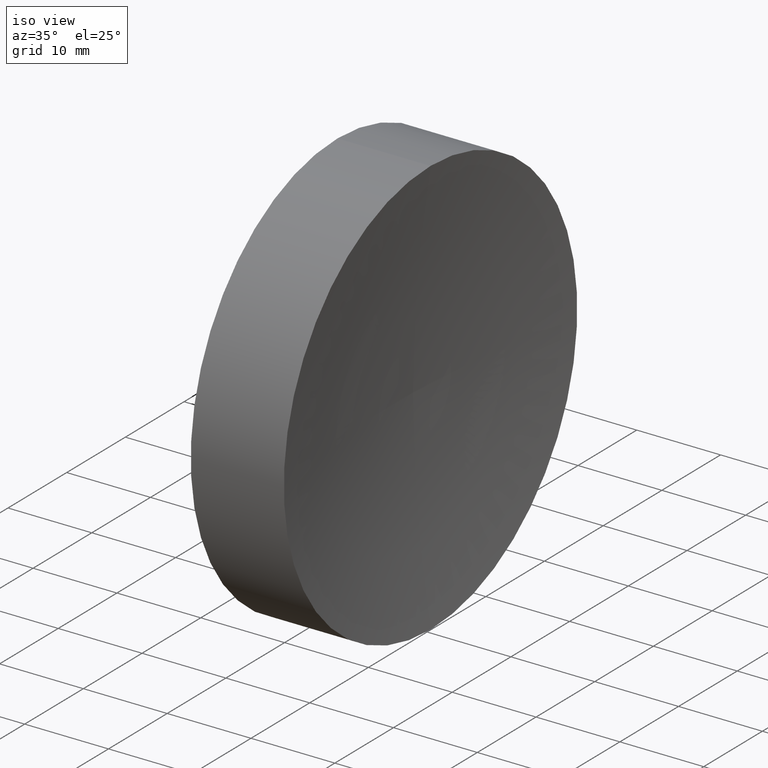
[diagram: clean part render]
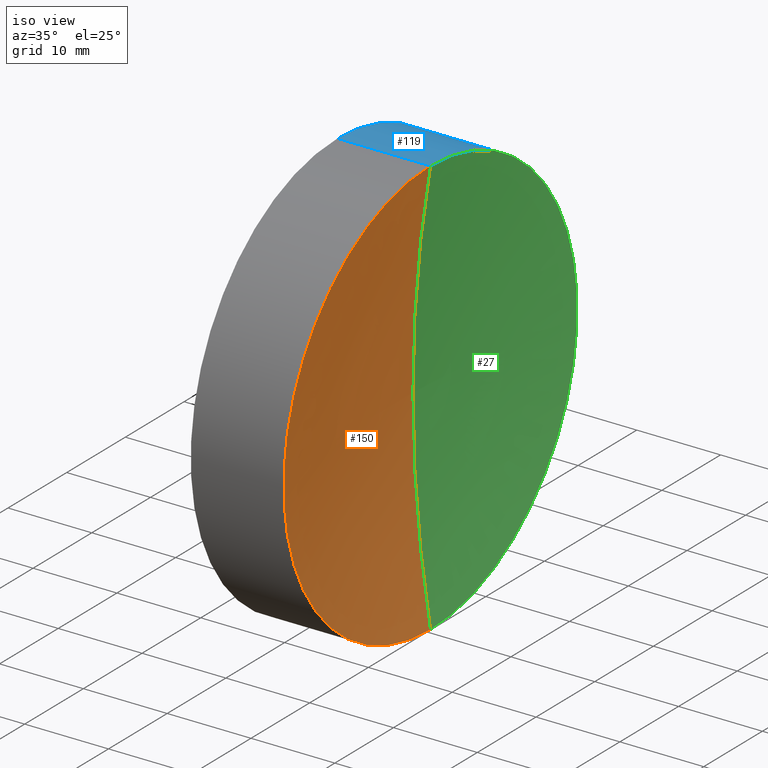
[diagram: same view with three faces highlighted in distinct colors, each labeled with its STEP entity id]
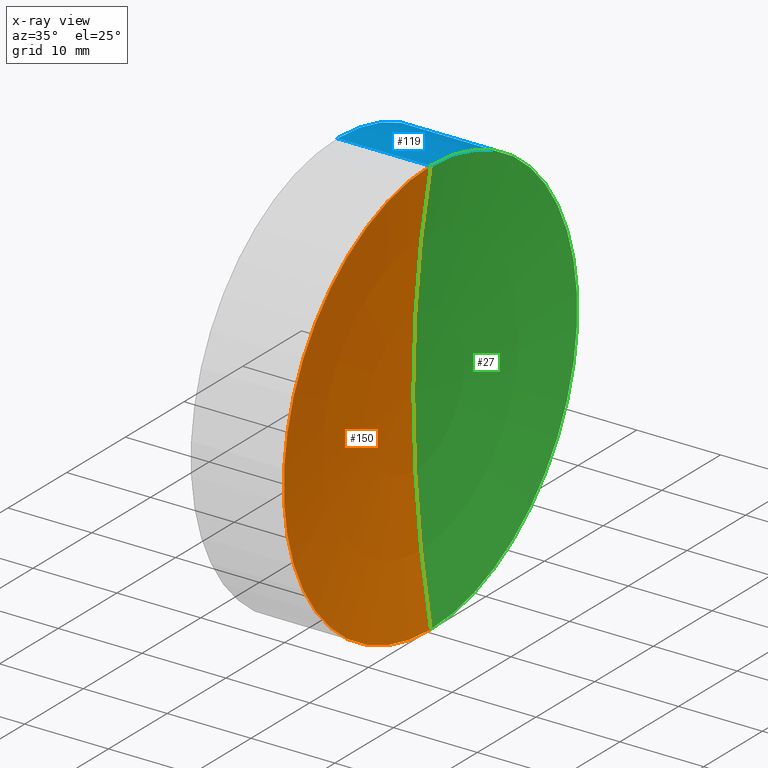
[diagram: x-ray of the same camera — body ghosted, the three highlighted faces saturated]
A machine part, iso view with three faces highlighted in distinct colors.
The next image is the same camera in x-ray (body ghosted, the three faces saturated) — at least one of them is partly hidden behind the body in this view.
Their STEP definitions:

[orange] entity #150 — the highlighted toroidal blend (fillet) surface has major radius 0 mm and minor (blend) radius 150 mm.
#5 = VERTEX_POINT ( 'NONE', #29 ) ;
#14 = FACE_OUTER_BOUND ( 'NONE', #117, .T. ) ;
#29 = CARTESIAN_POINT ( 'NONE',  ( 241.2833154481886300, 138.7560422467448700, -24.99999999999999300 ) ) ;
#31 = AXIS2_PLACEMENT_3D ( 'NONE', #47, #151, #149 ) ;
#35 = CARTESIAN_POINT ( 'NONE',  ( 389.1853088740783700, 138.7560422467448700, -6.812960362534425900E-006 ) ) ;
#40 = EDGE_CURVE ( 'NONE', #5, #146, #134, .T. ) ;
#43 = CARTESIAN_POINT ( 'NONE',  ( 389.1853088740783700, 138.7560422467448700, 6.812960362534425900E-006 ) ) ;
#45 = DIRECTION ( 'NONE',  ( -1.000000000000000000, -0.0000000000000000000, -0.0000000000000000000 ) ) ;
#47 = CARTESIAN_POINT ( 'NONE',  ( 389.1853088740783700, 138.7560422467448700, 0.0000000000000000000 ) ) ;
#65 = EDGE_CURVE ( 'NONE', #5, #89, #135, .T. ) ;
#77 = EDGE_CURVE ( 'NONE', #89, #146, #82, .T. ) ;
#79 = CARTESIAN_POINT ( 'NONE',  ( 241.2833154481886300, 138.7560422467448700, 24.99999999999999300 ) ) ;
#81 = DIRECTION ( 'NONE',  ( 0.0000000000000000000, 0.0000000000000000000, 1.000000000000000000 ) ) ;
#82 = CIRCLE ( 'NONE', #144, 150.0000000000000300 ) ;
#87 = CARTESIAN_POINT ( 'NONE',  ( 239.1853088740785200, 138.7560422467448700, 0.0000000000000000000 ) ) ;
#89 = VERTEX_POINT ( 'NONE', #79 ) ;
#94 = DIRECTION ( 'NONE',  ( -0.0000000000000000000, 1.000000000000000000, 1.224646799147353200E-016 ) ) ;
#97 = DIRECTION ( 'NONE',  ( 0.0000000000000000000, 0.0000000000000000000, -1.000000000000000000 ) ) ;
#108 = ORIENTED_EDGE ( 'NONE', *, *, #77, .F. ) ;
#112 = DIRECTION ( 'NONE',  ( 0.0000000000000000000, -1.850371707708593800E-016, 1.000000000000000000 ) ) ;
#114 = AXIS2_PLACEMENT_3D ( 'NONE', #156, #45, #81 ) ;
#115 = ORIENTED_EDGE ( 'NONE', *, *, #40, .T. ) ;
#117 = EDGE_LOOP ( 'NONE', ( #127, #115, #108 ) ) ;
#125 = DIRECTION ( 'NONE',  ( 0.0000000000000000000, -1.000000000000000000, 0.0000000000000000000 ) ) ;
#126 = TOROIDAL_SURFACE ( 'NONE', #31, -6.812960362534425900E-006, 150.0000000000000300 ) ;
#127 = ORIENTED_EDGE ( 'NONE', *, *, #65, .F. ) ;
#130 = AXIS2_PLACEMENT_3D ( 'NONE', #43, #94, #112 ) ;
#134 = CIRCLE ( 'NONE', #130, 150.0000000000000300 ) ;
#135 = CIRCLE ( 'NONE', #114, 24.99999999999999300 ) ;
#144 = AXIS2_PLACEMENT_3D ( 'NONE', #35, #125, #97 ) ;
#146 = VERTEX_POINT ( 'NONE', #87 ) ;
#149 = DIRECTION ( 'NONE',  ( 0.0000000000000000000, 0.0000000000000000000, 1.000000000000000000 ) ) ;
#150 = ADVANCED_FACE ( 'NONE', ( #14 ), #126, .F. ) ;
#151 = DIRECTION ( 'NONE',  ( -1.000000000000000000, -0.0000000000000000000, -0.0000000000000000000 ) ) ;
#156 = CARTESIAN_POINT ( 'NONE',  ( 241.2833154481886300, 138.7560422467448700, 0.0000000000000000000 ) ) ;

[blue] entity #119 — the highlighted cylindrical surface (partial cylindrical patch) has radius 25 mm, axis along (-1, -0, -0).
#5 = VERTEX_POINT ( 'NONE', #29 ) ;
#7 = DIRECTION ( 'NONE',  ( 0.0000000000000000000, 0.0000000000000000000, 1.000000000000000000 ) ) ;
#10 = CARTESIAN_POINT ( 'NONE',  ( 230.1853110698390300, 138.7560422467448700, 0.0000000000000000000 ) ) ;
#11 = CIRCLE ( 'NONE', #107, 24.99999999999999300 ) ;
#15 = ORIENTED_EDGE ( 'NONE', *, *, #70, .T. ) ;
#17 = CARTESIAN_POINT ( 'NONE',  ( 217.9702860043302100, 138.7560422467448700, 0.0000000000000000000 ) ) ;
#18 = DIRECTION ( 'NONE',  ( -1.000000000000000000, -0.0000000000000000000, -0.0000000000000000000 ) ) ;
#19 = DIRECTION ( 'NONE',  ( -1.000000000000000000, -0.0000000000000000000, -0.0000000000000000000 ) ) ;
#20 = DIRECTION ( 'NONE',  ( -1.000000000000000000, -0.0000000000000000000, -0.0000000000000000000 ) ) ;
#23 = DIRECTION ( 'NONE',  ( -1.000000000000000000, -0.0000000000000000000, -0.0000000000000000000 ) ) ;
#29 = CARTESIAN_POINT ( 'NONE',  ( 241.2833154481886300, 138.7560422467448700, -24.99999999999999300 ) ) ;
#33 = LINE ( 'NONE', #80, #158 ) ;
#41 = VECTOR ( 'NONE', #18, 1000.000000000000000 ) ;
#51 = CIRCLE ( 'NONE', #101, 24.99999999999999300 ) ;
#52 = AXIS2_PLACEMENT_3D ( 'NONE', #17, #160, #141 ) ;
#53 = VERTEX_POINT ( 'NONE', #110 ) ;
#55 = CARTESIAN_POINT ( 'NONE',  ( 241.2833154481886300, 138.7560422467448700, 0.0000000000000000000 ) ) ;
#70 = EDGE_CURVE ( 'NONE', #89, #5, #51, .T. ) ;
#71 = FACE_OUTER_BOUND ( 'NONE', #159, .T. ) ;
#76 = ORIENTED_EDGE ( 'NONE', *, *, #154, .F. ) ;
#79 = CARTESIAN_POINT ( 'NONE',  ( 241.2833154481886300, 138.7560422467448700, 24.99999999999999300 ) ) ;
#80 = CARTESIAN_POINT ( 'NONE',  ( 217.9702860043302100, 138.7560422467448700, -24.99999999999999300 ) ) ;
#89 = VERTEX_POINT ( 'NONE', #79 ) ;
#90 = EDGE_CURVE ( 'NONE', #5, #53, #33, .T. ) ;
#92 = CYLINDRICAL_SURFACE ( 'NONE', #52, 24.99999999999999300 ) ;
#93 = EDGE_CURVE ( 'NONE', #89, #137, #103, .T. ) ;
#96 = CARTESIAN_POINT ( 'NONE',  ( 217.9702860043302100, 138.7560422467448700, 24.99999999999999300 ) ) ;
#101 = AXIS2_PLACEMENT_3D ( 'NONE', #55, #19, #157 ) ;
#103 = LINE ( 'NONE', #96, #41 ) ;
#107 = AXIS2_PLACEMENT_3D ( 'NONE', #10, #23, #7 ) ;
#110 = CARTESIAN_POINT ( 'NONE',  ( 230.1853110698390300, 138.7560422467448700, -24.99999999999999300 ) ) ;
#119 = ADVANCED_FACE ( 'NONE', ( #71 ), #92, .T. ) ;
#137 = VERTEX_POINT ( 'NONE', #143 ) ;
#141 = DIRECTION ( 'NONE',  ( 0.0000000000000000000, 0.0000000000000000000, 1.000000000000000000 ) ) ;
#143 = CARTESIAN_POINT ( 'NONE',  ( 230.1853110698390300, 138.7560422467448700, 24.99999999999999300 ) ) ;
#152 = ORIENTED_EDGE ( 'NONE', *, *, #93, .F. ) ;
#154 = EDGE_CURVE ( 'NONE', #137, #53, #11, .T. ) ;
#157 = DIRECTION ( 'NONE',  ( 0.0000000000000000000, 0.0000000000000000000, 1.000000000000000000 ) ) ;
#158 = VECTOR ( 'NONE', #20, 1000.000000000000000 ) ;
#159 = EDGE_LOOP ( 'NONE', ( #15, #166, #76, #152 ) ) ;
#160 = DIRECTION ( 'NONE',  ( -1.000000000000000000, -0.0000000000000000000, -0.0000000000000000000 ) ) ;
#166 = ORIENTED_EDGE ( 'NONE', *, *, #90, .T. ) ;

[green] entity #27 — the highlighted toroidal blend (fillet) surface has major radius 0 mm and minor (blend) radius 150 mm.
#5 = VERTEX_POINT ( 'NONE', #29 ) ;
#19 = DIRECTION ( 'NONE',  ( -1.000000000000000000, -0.0000000000000000000, -0.0000000000000000000 ) ) ;
#27 = ADVANCED_FACE ( 'NONE', ( #99 ), #147, .F. ) ;
#29 = CARTESIAN_POINT ( 'NONE',  ( 241.2833154481886300, 138.7560422467448700, -24.99999999999999300 ) ) ;
#35 = CARTESIAN_POINT ( 'NONE',  ( 389.1853088740783700, 138.7560422467448700, -6.812960362534425900E-006 ) ) ;
#40 = EDGE_CURVE ( 'NONE', #5, #146, #134, .T. ) ;
#43 = CARTESIAN_POINT ( 'NONE',  ( 389.1853088740783700, 138.7560422467448700, 6.812960362534425900E-006 ) ) ;
#51 = CIRCLE ( 'NONE', #101, 24.99999999999999300 ) ;
#55 = CARTESIAN_POINT ( 'NONE',  ( 241.2833154481886300, 138.7560422467448700, 0.0000000000000000000 ) ) ;
#64 = CARTESIAN_POINT ( 'NONE',  ( 389.1853088740783700, 138.7560422467448700, 0.0000000000000000000 ) ) ;
#66 = AXIS2_PLACEMENT_3D ( 'NONE', #64, #74, #91 ) ;
#70 = EDGE_CURVE ( 'NONE', #89, #5, #51, .T. ) ;
#74 = DIRECTION ( 'NONE',  ( -1.000000000000000000, -0.0000000000000000000, -0.0000000000000000000 ) ) ;
#77 = EDGE_CURVE ( 'NONE', #89, #146, #82, .T. ) ;
#79 = CARTESIAN_POINT ( 'NONE',  ( 241.2833154481886300, 138.7560422467448700, 24.99999999999999300 ) ) ;
#82 = CIRCLE ( 'NONE', #144, 150.0000000000000300 ) ;
#87 = CARTESIAN_POINT ( 'NONE',  ( 239.1853088740785200, 138.7560422467448700, 0.0000000000000000000 ) ) ;
#89 = VERTEX_POINT ( 'NONE', #79 ) ;
#91 = DIRECTION ( 'NONE',  ( 0.0000000000000000000, 0.0000000000000000000, 1.000000000000000000 ) ) ;
#94 = DIRECTION ( 'NONE',  ( -0.0000000000000000000, 1.000000000000000000, 1.224646799147353200E-016 ) ) ;
#97 = DIRECTION ( 'NONE',  ( 0.0000000000000000000, 0.0000000000000000000, -1.000000000000000000 ) ) ;
#99 = FACE_OUTER_BOUND ( 'NONE', #139, .T. ) ;
#101 = AXIS2_PLACEMENT_3D ( 'NONE', #55, #19, #157 ) ;
#112 = DIRECTION ( 'NONE',  ( 0.0000000000000000000, -1.850371707708593800E-016, 1.000000000000000000 ) ) ;
#123 = ORIENTED_EDGE ( 'NONE', *, *, #70, .F. ) ;
#125 = DIRECTION ( 'NONE',  ( 0.0000000000000000000, -1.000000000000000000, 0.0000000000000000000 ) ) ;
#130 = AXIS2_PLACEMENT_3D ( 'NONE', #43, #94, #112 ) ;
#133 = ORIENTED_EDGE ( 'NONE', *, *, #40, .F. ) ;
#134 = CIRCLE ( 'NONE', #130, 150.0000000000000300 ) ;
#139 = EDGE_LOOP ( 'NONE', ( #133, #123, #155 ) ) ;
#144 = AXIS2_PLACEMENT_3D ( 'NONE', #35, #125, #97 ) ;
#146 = VERTEX_POINT ( 'NONE', #87 ) ;
#147 = TOROIDAL_SURFACE ( 'NONE', #66, -6.812960362534425900E-006, 150.0000000000000300 ) ;
#155 = ORIENTED_EDGE ( 'NONE', *, *, #77, .T. ) ;
#157 = DIRECTION ( 'NONE',  ( 0.0000000000000000000, 0.0000000000000000000, 1.000000000000000000 ) ) ;